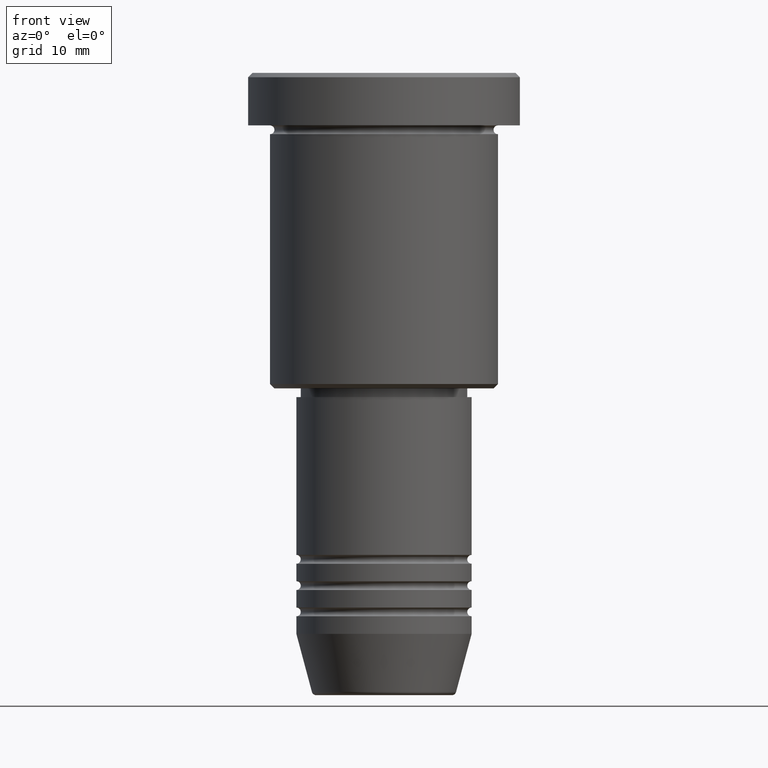
[diagram: clean part render]
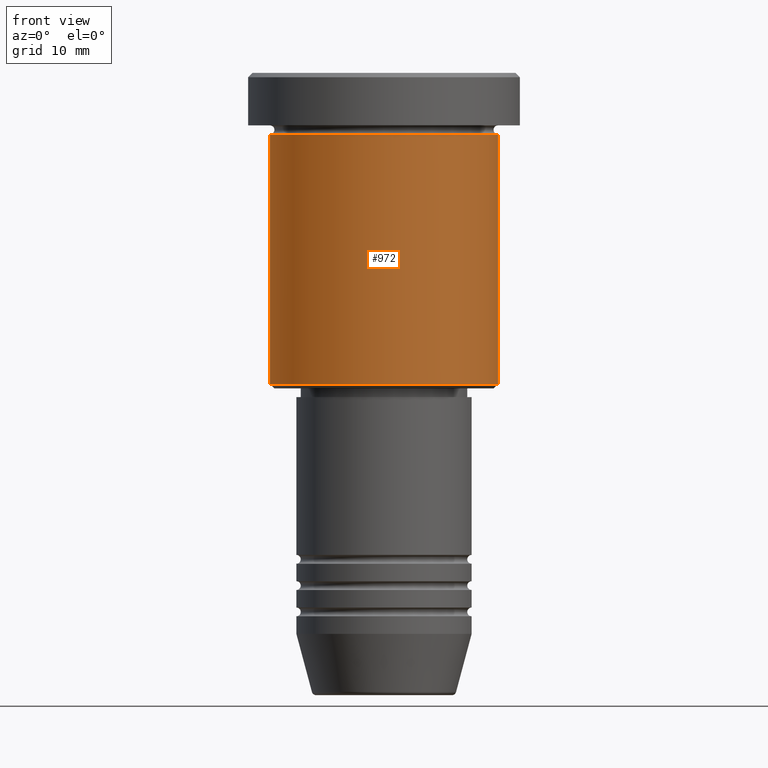
[diagram: same view with one face highlighted and labeled with its STEP entity id]
A machine part, front view. The second image highlights one B-rep face of the part: STEP entity #972.
In plain terms, the highlighted cylindrical surface (partial cylindrical patch) has radius 13 mm, axis along (-0, -0, 1).
Its self-contained STEP definition (entity closure, byte-faithful):
#58 = ORIENTED_EDGE ( 'NONE', *, *, #447, .T. ) ;
#61 = LINE ( 'NONE', #881, #365 ) ;
#152 = CARTESIAN_POINT ( 'NONE',  ( 13.00000000000000000, 0.000000000000000000, -35.50000000000000711 ) ) ;
#189 = CARTESIAN_POINT ( 'NONE',  ( -13.00000000000000000, 1.592040838891559095E-15, -6.999999999999995559 ) ) ;
#194 = CARTESIAN_POINT ( 'NONE',  ( -13.00000000000000000, 1.592040838891559095E-15, -35.50000000000000711 ) ) ;
#209 = DIRECTION ( 'NONE',  ( -0.000000000000000000, -0.000000000000000000, 1.000000000000000000 ) ) ;
#214 = DIRECTION ( 'NONE',  ( -0.000000000000000000, -0.000000000000000000, 1.000000000000000000 ) ) ;
#249 = DIRECTION ( 'NONE',  ( -0.000000000000000000, -0.000000000000000000, 1.000000000000000000 ) ) ;
#293 = VERTEX_POINT ( 'NONE', #189 ) ;
#299 = DIRECTION ( 'NONE',  ( -1.000000000000000000, 0.000000000000000000, 0.000000000000000000 ) ) ;
#308 = DIRECTION ( 'NONE',  ( 1.000000000000000000, 0.000000000000000000, 0.000000000000000000 ) ) ;
#321 = CYLINDRICAL_SURFACE ( 'NONE', #501, 13.00000000000000000 ) ;
#331 = DIRECTION ( 'NONE',  ( -0.000000000000000000, -0.000000000000000000, 1.000000000000000000 ) ) ;
#340 = LINE ( 'NONE', #702, #351 ) ;
#351 = VECTOR ( 'NONE', #517, 1000.000000000000000 ) ;
#364 = EDGE_LOOP ( 'NONE', ( #1028, #58, #386, #1010 ) ) ;
#365 = VECTOR ( 'NONE', #331, 1000.000000000000000 ) ;
#386 = ORIENTED_EDGE ( 'NONE', *, *, #598, .T. ) ;
#446 = CIRCLE ( 'NONE', #487, 13.00000000000000000 ) ;
#447 = EDGE_CURVE ( 'NONE', #842, #692, #446, .T. ) ;
#487 = AXIS2_PLACEMENT_3D ( 'NONE', #1116, #209, #299 ) ;
#501 = AXIS2_PLACEMENT_3D ( 'NONE', #1053, #214, #308 ) ;
#517 = DIRECTION ( 'NONE',  ( -0.000000000000000000, -0.000000000000000000, 1.000000000000000000 ) ) ;
#572 = FACE_OUTER_BOUND ( 'NONE', #364, .T. ) ;
#584 = VERTEX_POINT ( 'NONE', #900 ) ;
#598 = EDGE_CURVE ( 'NONE', #692, #584, #61, .T. ) ;
#609 = DIRECTION ( 'NONE',  ( 1.000000000000000000, 0.000000000000000000, 0.000000000000000000 ) ) ;
#692 = VERTEX_POINT ( 'NONE', #152 ) ;
#702 = CARTESIAN_POINT ( 'NONE',  ( -13.00000000000000000, 1.592040838891559095E-15, 0.000000000000000000 ) ) ;
#717 = EDGE_CURVE ( 'NONE', #293, #584, #944, .T. ) ;
#842 = VERTEX_POINT ( 'NONE', #194 ) ;
#881 = CARTESIAN_POINT ( 'NONE',  ( 13.00000000000000000, 0.000000000000000000, 0.000000000000000000 ) ) ;
#900 = CARTESIAN_POINT ( 'NONE',  ( 13.00000000000000000, 0.000000000000000000, -6.999999999999995559 ) ) ;
#944 = CIRCLE ( 'NONE', #1066, 13.00000000000000000 ) ;
#972 = ADVANCED_FACE ( 'NONE', ( #572 ), #321, .T. ) ;
#1010 = ORIENTED_EDGE ( 'NONE', *, *, #717, .F. ) ;
#1028 = ORIENTED_EDGE ( 'NONE', *, *, #1133, .F. ) ;
#1053 = CARTESIAN_POINT ( 'NONE',  ( 0.000000000000000000, 0.000000000000000000, 0.000000000000000000 ) ) ;
#1066 = AXIS2_PLACEMENT_3D ( 'NONE', #1072, #249, #609 ) ;
#1072 = CARTESIAN_POINT ( 'NONE',  ( 0.000000000000000000, 0.000000000000000000, -6.999999999999995559 ) ) ;
#1116 = CARTESIAN_POINT ( 'NONE',  ( 0.000000000000000000, 0.000000000000000000, -35.50000000000000711 ) ) ;
#1133 = EDGE_CURVE ( 'NONE', #842, #293, #340, .T. ) ;